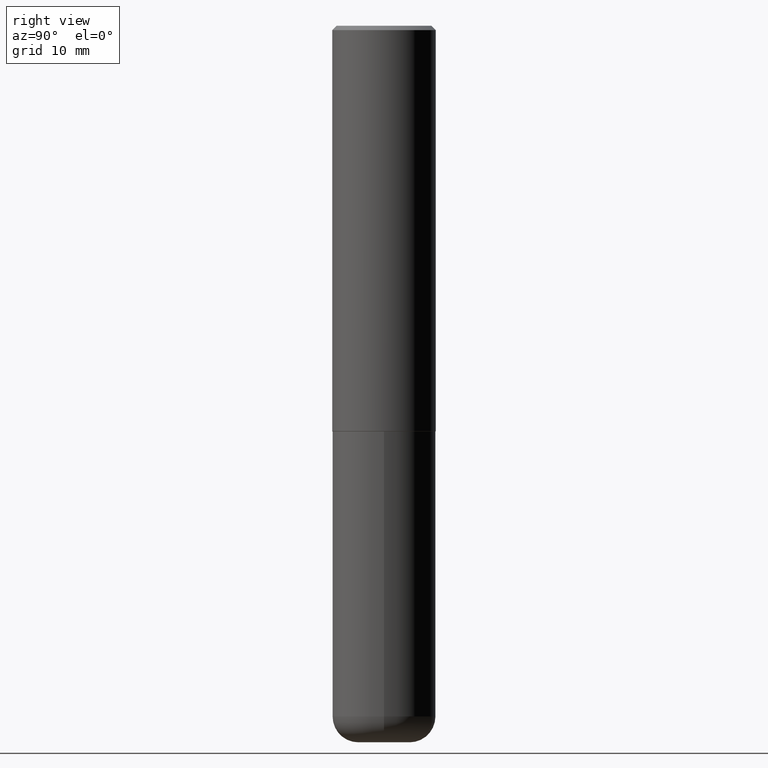
[diagram: clean part render]
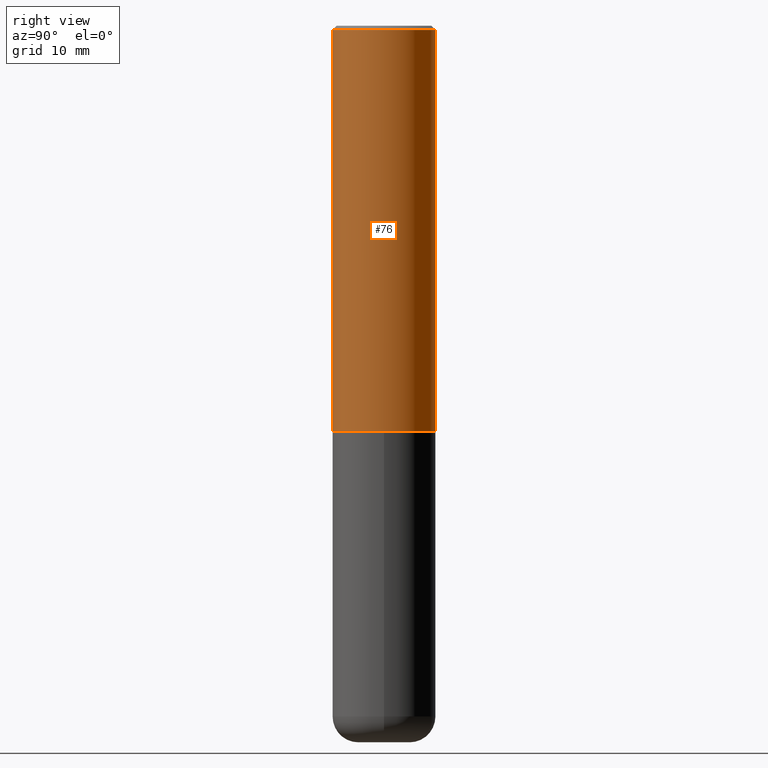
[diagram: same view with one face highlighted and labeled with its STEP entity id]
A machine part, right view. The second image highlights one B-rep face of the part: STEP entity #76.
In plain terms, the highlighted cylindrical surface (partial cylindrical patch) has radius 5.9995 mm, axis along (-0, 0, 1).
Its self-contained STEP definition (entity closure, byte-faithful):
#6 = AXIS2_PLACEMENT_3D ( 'NONE', #404, #75, #399 ) ;
#13 = DIRECTION ( 'NONE',  ( -2.445371925614294233E-29, 3.491620077334691546E-15, 1.000000000000000000 ) ) ;
#17 = CARTESIAN_POINT ( 'NONE',  ( 1.678301941865357183E-15, 0.2362000000000001043, -8.247206622664545710E-16 ) ) ;
#22 = DIRECTION ( 'NONE',  ( -6.982962677686265133E-15, -1.000000000000000000, 3.469747663417773847E-15 ) ) ;
#32 = EDGE_LOOP ( 'NONE', ( #218, #89, #375, #320 ) ) ;
#52 = EDGE_CURVE ( 'NONE', #122, #408, #169, .T. ) ;
#58 = VERTEX_POINT ( 'NONE', #365 ) ;
#72 = CIRCLE ( 'NONE', #378, 0.2362000000000002153 ) ;
#74 = EDGE_CURVE ( 'NONE', #219, #122, #72, .T. ) ;
#75 = DIRECTION ( 'NONE',  ( -2.445371925614294233E-29, 3.491620077334691546E-15, 1.000000000000000000 ) ) ;
#76 = ADVANCED_FACE ( 'NONE', ( #278 ), #275, .T. ) ;
#85 = CARTESIAN_POINT ( 'NONE',  ( 1.678301941865380454E-15, 0.2361999999999937760, -1.849400000000001043 ) ) ;
#89 = ORIENTED_EDGE ( 'NONE', *, *, #52, .T. ) ;
#122 = VERTEX_POINT ( 'NONE', #85 ) ;
#135 = VECTOR ( 'NONE', #332, 39.37007874015748143 ) ;
#144 = CARTESIAN_POINT ( 'NONE',  ( 1.649375784469496525E-15, 0.2361999999999999378, -0.02000000000000087472 ) ) ;
#155 = EDGE_CURVE ( 'NONE', #219, #58, #368, .T. ) ;
#169 = LINE ( 'NONE', #17, #135 ) ;
#184 = CIRCLE ( 'NONE', #285, 0.2361999999999999933 ) ;
#191 = CARTESIAN_POINT ( 'NONE',  ( -1.649375784469452349E-15, -0.2362000000000066546, -1.849399999999999489 ) ) ;
#218 = ORIENTED_EDGE ( 'NONE', *, *, #74, .T. ) ;
#219 = VERTEX_POINT ( 'NONE', #191 ) ;
#253 = CARTESIAN_POINT ( 'NONE',  ( 4.890743851228601113E-31, -6.983240154669400497E-17, -0.02000000000000005246 ) ) ;
#265 = VECTOR ( 'NONE', #13, 39.37007874015748143 ) ;
#275 = CYLINDRICAL_SURFACE ( 'NONE', #6, 0.2362000000000001043 ) ;
#278 = FACE_OUTER_BOUND ( 'NONE', #32, .T. ) ;
#285 = AXIS2_PLACEMENT_3D ( 'NONE', #253, #373, #305 ) ;
#301 = CARTESIAN_POINT ( 'NONE',  ( 4.522470839231075964E-29, -6.457402171022779437E-15, -1.849400000000000155 ) ) ;
#305 = DIRECTION ( 'NONE',  ( -6.982962677686265922E-15, -1.000000000000000000, 3.487819265831411744E-15 ) ) ;
#320 = ORIENTED_EDGE ( 'NONE', *, *, #155, .F. ) ;
#332 = DIRECTION ( 'NONE',  ( -2.445371925614294233E-29, 3.491620077334691546E-15, 1.000000000000000000 ) ) ;
#334 = CARTESIAN_POINT ( 'NONE',  ( -1.649375784469496722E-15, -0.2362000000000001043, 8.247206622664545710E-16 ) ) ;
#336 = DIRECTION ( 'NONE',  ( -2.445371925614294233E-29, 3.491620077334691546E-15, 1.000000000000000000 ) ) ;
#362 = EDGE_CURVE ( 'NONE', #58, #408, #184, .T. ) ;
#365 = CARTESIAN_POINT ( 'NONE',  ( -1.620449627073635079E-15, -0.2362000000000000766, -0.01999999999999922673 ) ) ;
#368 = LINE ( 'NONE', #334, #265 ) ;
#373 = DIRECTION ( 'NONE',  ( -2.445371925614294233E-29, 3.491620077334691546E-15, 1.000000000000000000 ) ) ;
#375 = ORIENTED_EDGE ( 'NONE', *, *, #362, .F. ) ;
#378 = AXIS2_PLACEMENT_3D ( 'NONE', #301, #336, #22 ) ;
#399 = DIRECTION ( 'NONE',  ( -6.982962677686265922E-15, -1.000000000000000000, 3.491620077334691941E-15 ) ) ;
#404 = CARTESIAN_POINT ( 'NONE',  ( 0.000000000000000000, 0.000000000000000000, 0.000000000000000000 ) ) ;
#408 = VERTEX_POINT ( 'NONE', #144 ) ;